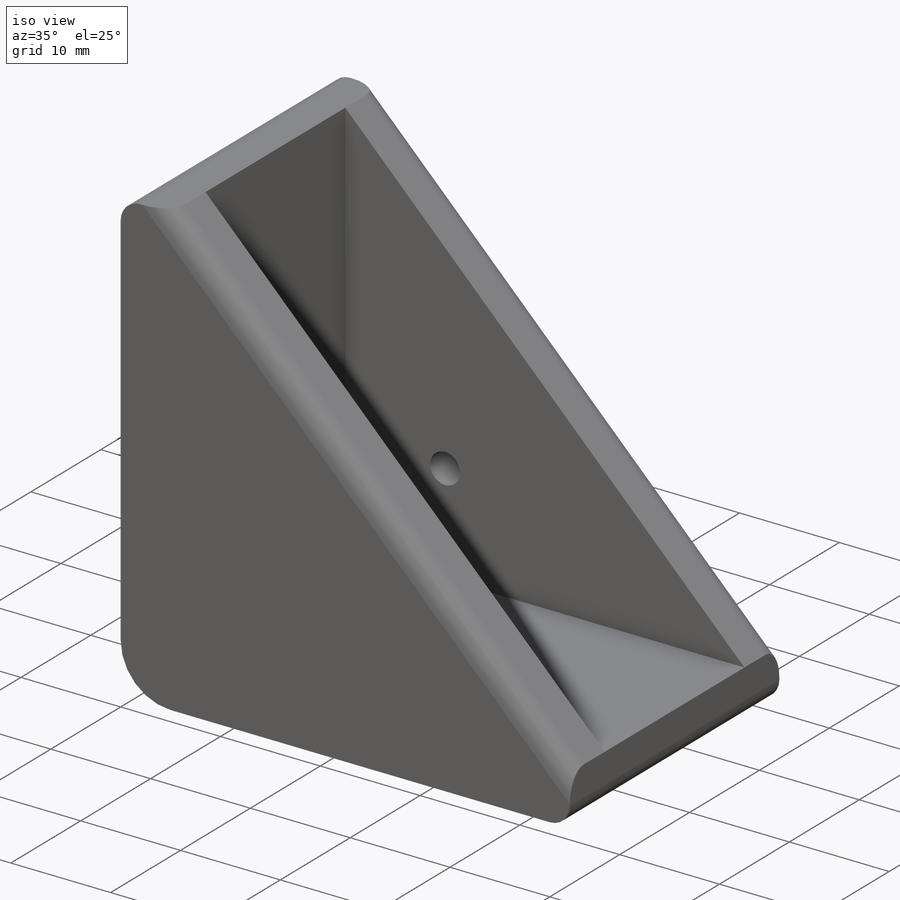
[diagram: iso view]
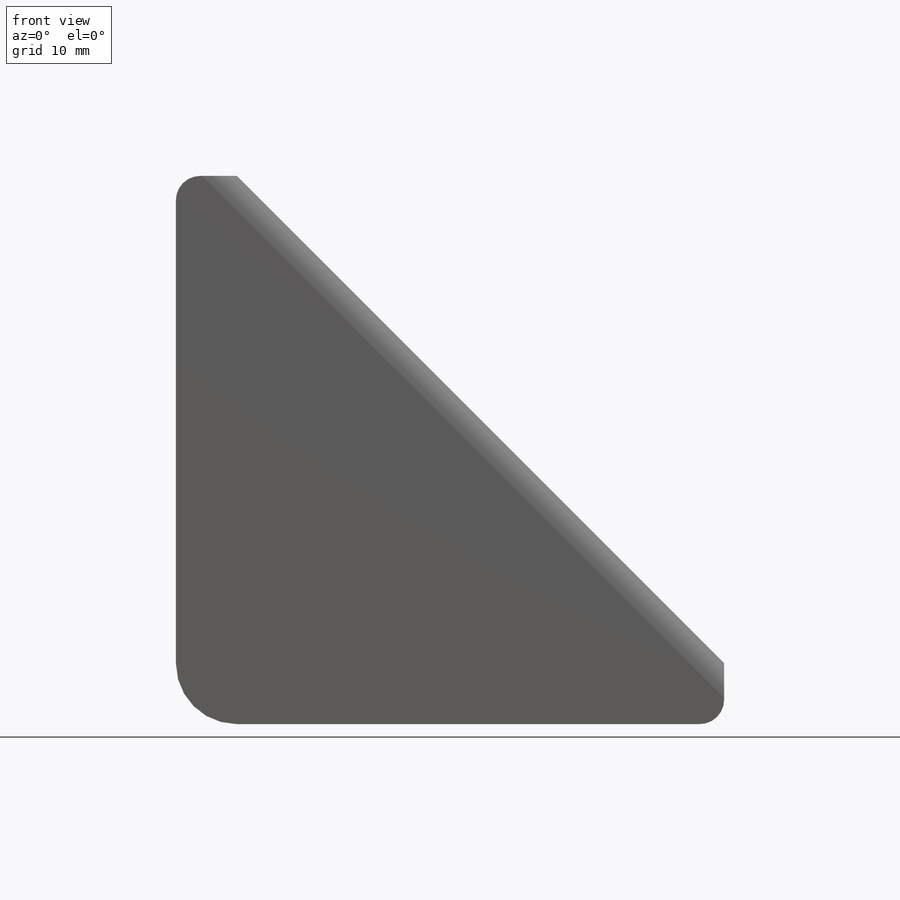
[diagram: front view]
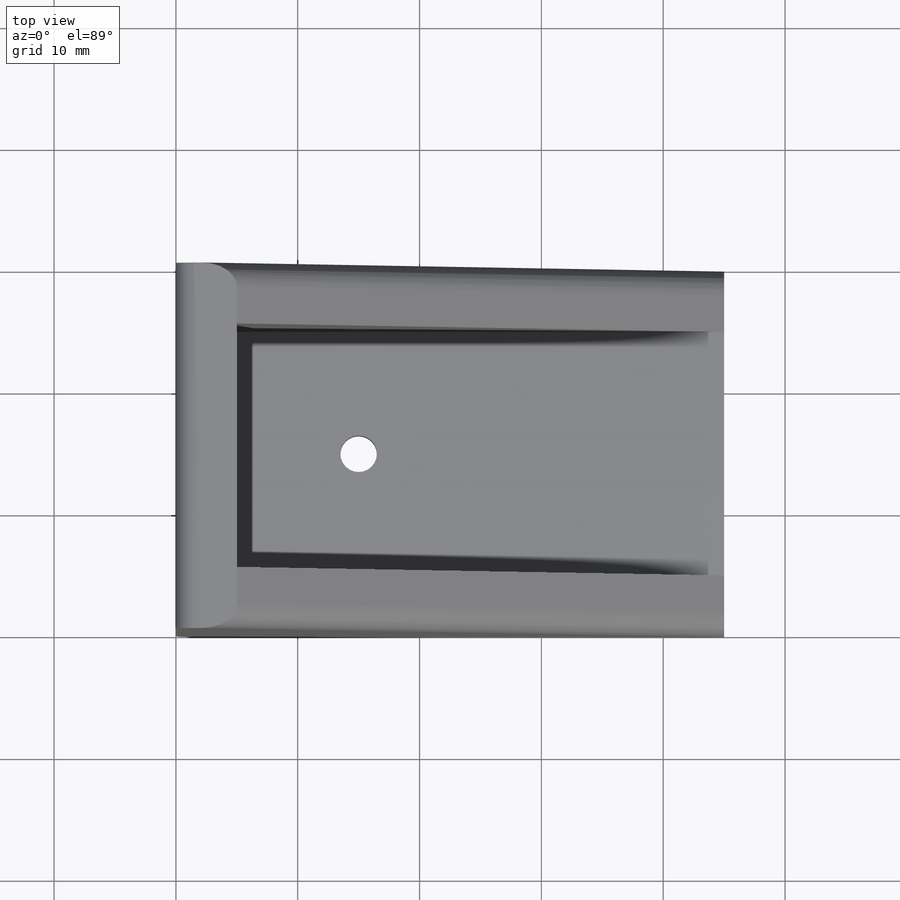
[diagram: top view]
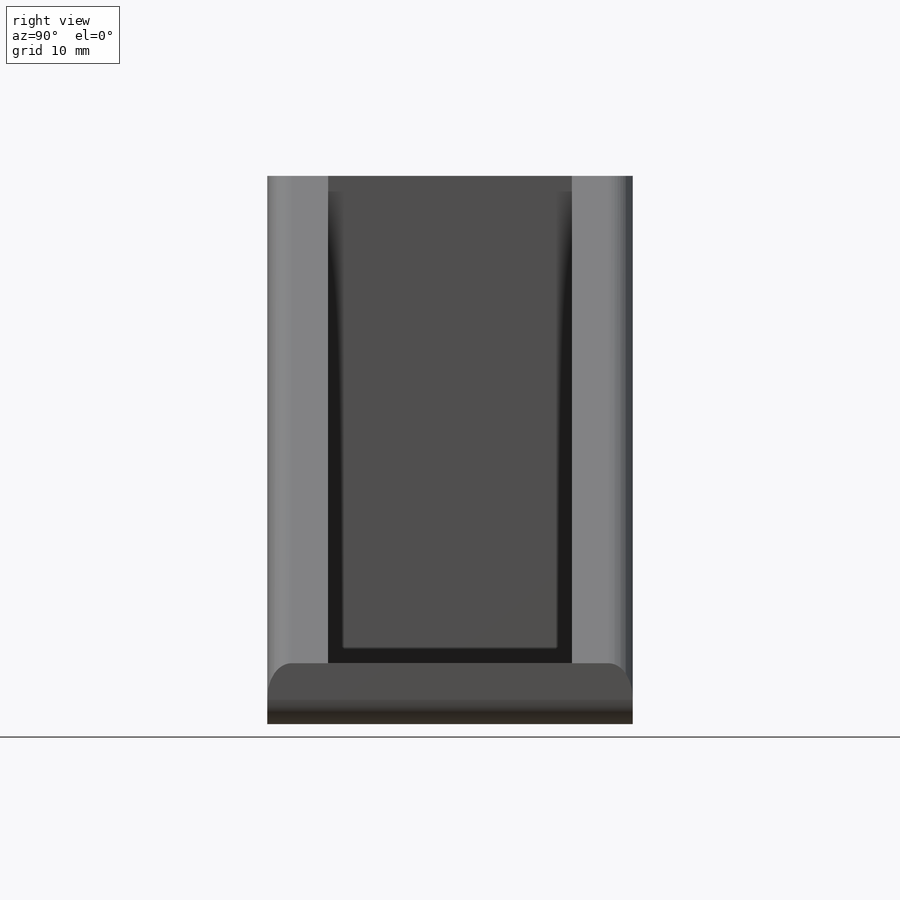
[diagram: right view]
SOLIDWORKS PART (.sldprt)
format: sldprt  version: not decoded by parser v0  size: 224,256 bytes
history: native  units: mm
features: sketch x5, extrude x3, cut_extrude x2, fillet x2, material x1 (+13 scaffold rows collapsed)
feature tree (26):
  scaffold x13  (default folders/planes/origin — collapsed)
  material  "Material <not specified>"
  sketch  "Sketch1"  dims[D1=45.0mm D2=45.0mm D3=5.0mm D4=5.0mm]
  extrude  "Boss-Extrude2"  Depth=30mm
  sketch  "Sketch2"
  extrude  "Boss-Extrude3"  Depth=5mm
  sketch  "Sketch3"
  extrude  "Boss-Extrude4"  Depth=5mm
  sketch  "Sketch4"  dims[D1=3.0mm D2=10.0mm D3=10.0mm]
  cut_extrude  "Cut-Extrude1"  [1 undecoded]
  sketch  "Sketch5"  dims[D1=3.0mm D2=10.0mm D3=10.0mm]
  cut_extrude  "Cut-Extrude2"  [1 undecoded]
  fillet  "Fillet1"  Radius=2mm
  fillet  "Fillet2"  Radius=5mm
decode coverage: 8 of 12 modeling features carry decoded parameters
note: 2 parameter values undecoded
note: suppression state not decoded; provenance and decode notes live in map.json
